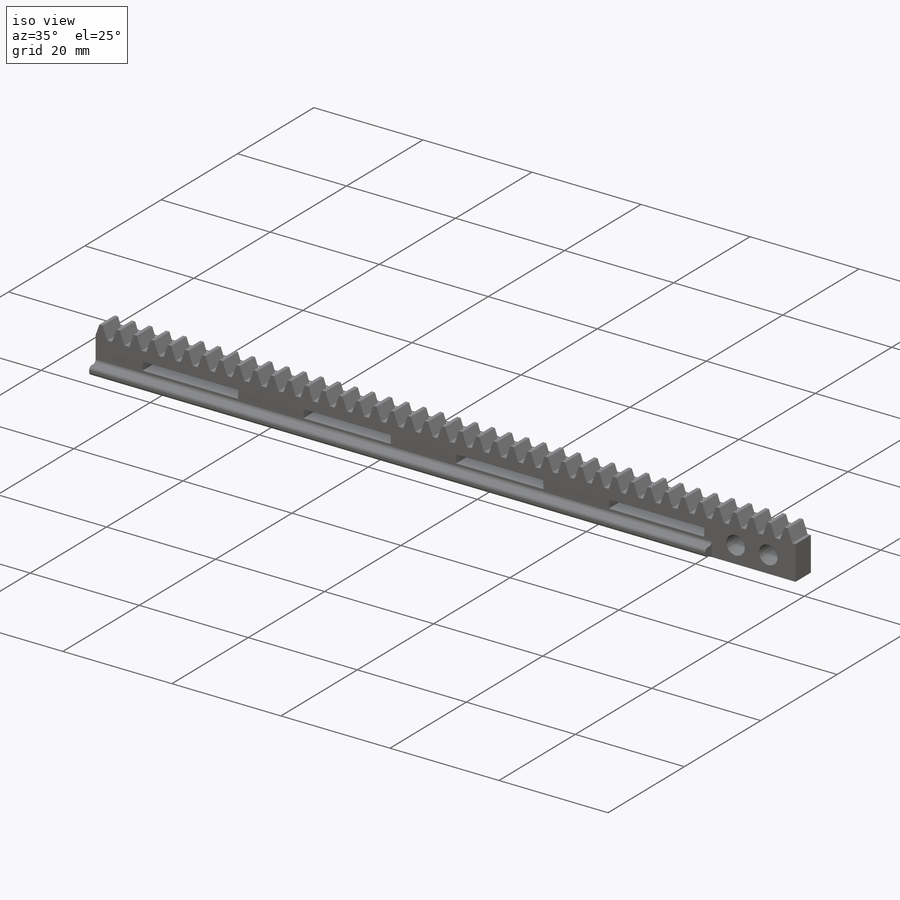
[diagram: iso view]
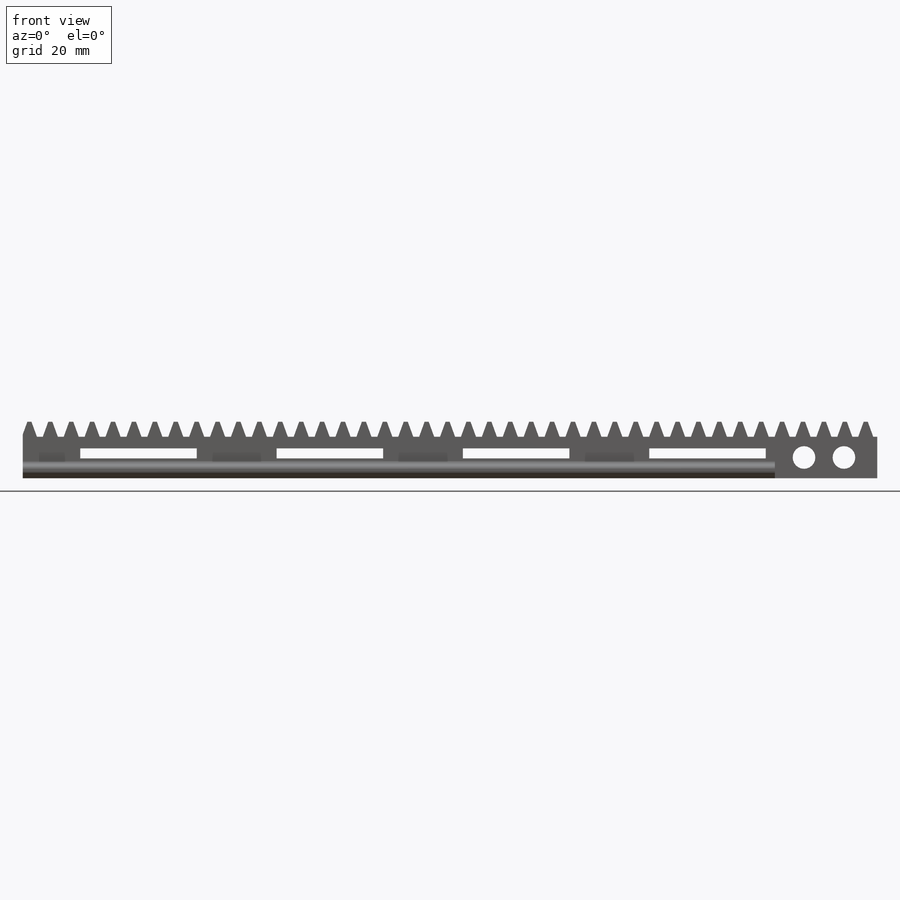
[diagram: front view]
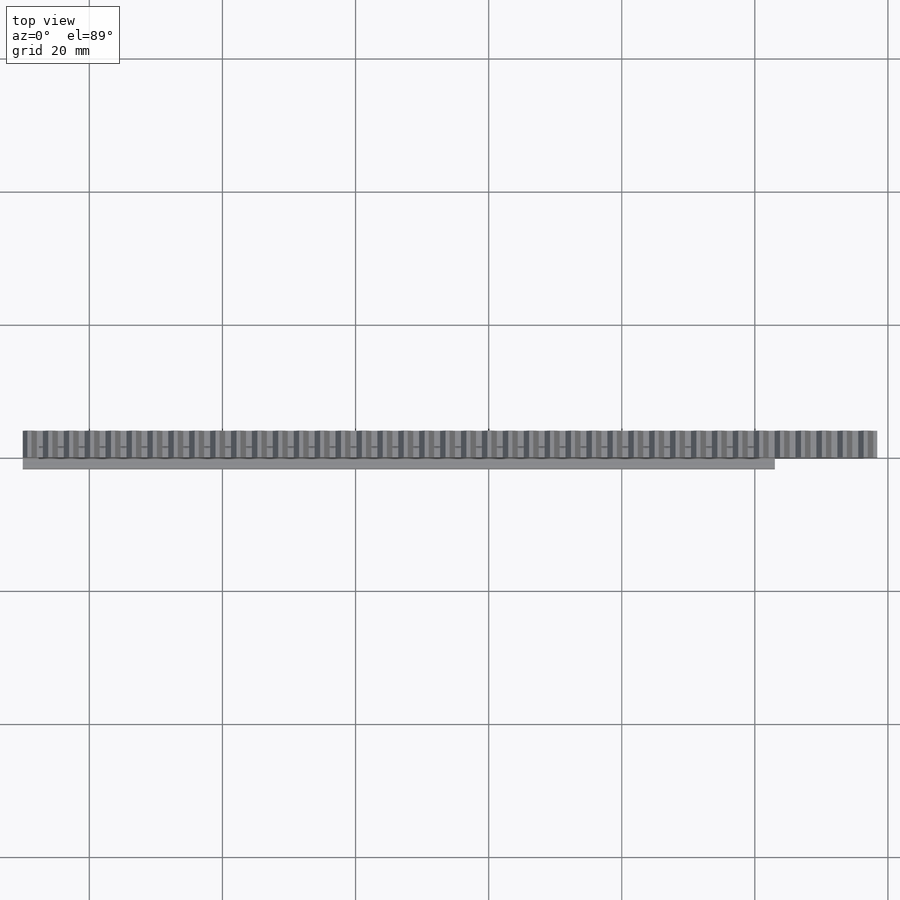
[diagram: top view]
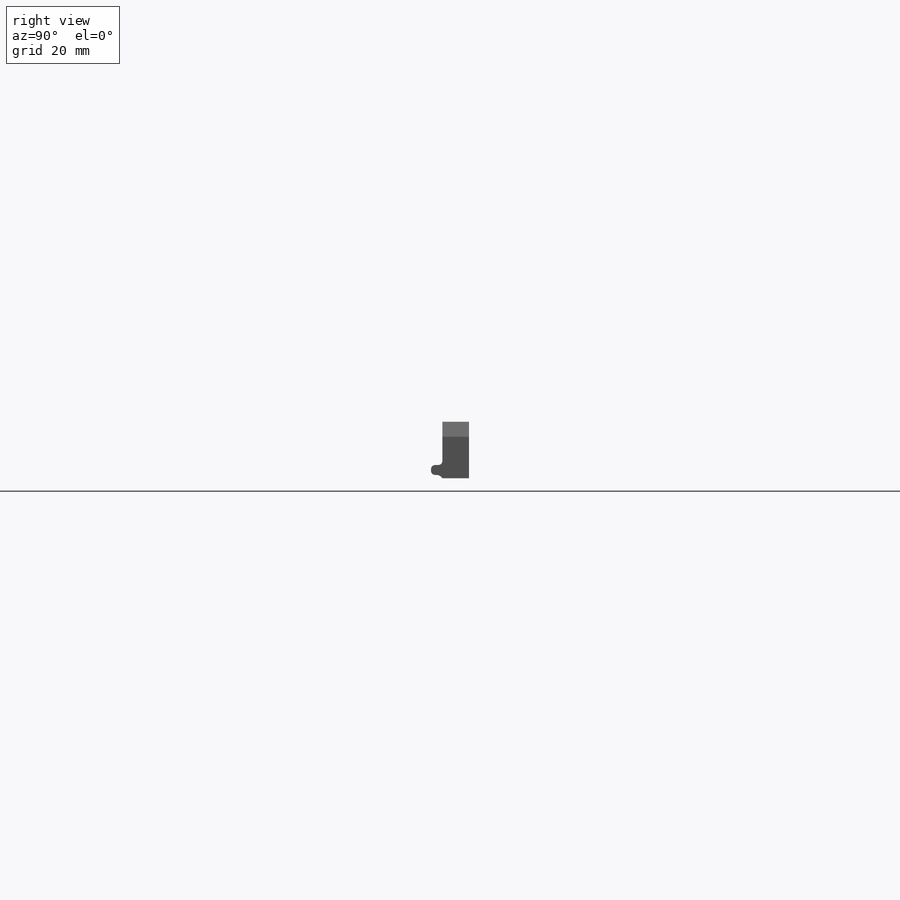
[diagram: right view]
SOLIDWORKS PART (.sldprt)
format: sldprt  version: not decoded by parser v0  size: 947,200 bytes
history: native  units: mm
features: sketch x11, cut_extrude x6, extrude x4, fillet x4, plane x3, pattern_linear x3, material x1 (+10 scaffold rows collapsed)
feature tree (42):
  scaffold x10  (default folders/planes/origin — collapsed)
  material  "Material <nicht angegeben>"
  plane  "Plane1"
  plane  "Plane2"
  plane  "Plane3"
  sketch  "HoldingSke"  dims[c1.Dr=15.875mm c1.MPH=6.5mm c1.Hub_dia=25.4mm c1.Diameter=38.1mm c1.Num_teeth=7.0mm c1.D1=115.0mm c2.Num_teeth=60.9999deg c2.Pitch_radius=~46.415395mm c2.Pitch=1.0mm c2.Width=8.636mm c2.Chamfer_wid=3.175mm c2.Chamfer_dep=12.7mm c2.Overall_len=25.4mm c2.D1=115.0mm c2.Show_teeth=998.0deg c2.Thickness=12.7mm c2.OAL=~25.400051mm c2.T_dim=21.59mm c3.D1=115.0mm c3.Ap=20.0deg c3.H=19.05mm c3.Pitch_height=6.5mm c3.Width=4.0mm c3.F=44.45mm c3.Backlash=0.038mm c3.Addendum_factor=~25.318689mm c3.Dedendum_factor=~11.91639mm c3.Fillet_factor=5.08mm c4.D1=~180.312849mm c4.Addendum_fac=1.0deg c5.D1=~180.312849mm c5.Dedendum_fac=1.25deg c6.D1=~180.312849mm c6.Clearance_fac=0.25deg c6.Dedendum_add=0.001mm c6.Length=185.5mm c6.Module=1.0mm]
  sketch  "BlankSke"  dims[Length=185.5mm Blank_height=7.5mm]
  extrude  "Blank"  Depth=4mm Face_width=4mm
  sketch  "TooCutSkeIll"  dims[c1.Root_fillet=0.251mm c1.Break_rad=0.04mm c1.D1=~12.298689mm c2.D1=~35.725861deg c2.Pitch_height=6.5mm c2.Gap_width=~1.798796mm c2.Dedendum=1.25mm c2.Addendum_plus=6.35mm c3.D1=64.897mm c3.Pressure_angle=20.0deg c4.D1=~0.717728mm c4.Addendum_plus=6.35mm c5.Addendum_plus=1.0254mm]
  cut_extrude  "ToothCutIll"  [1 undecoded]
  sketch  "TooCutSkeSim"  dims[c1.Pitch_height=6.5mm c1.D1=~14.860116mm c1.Pressure_angle=20.0deg c1.Gap_width=~1.798796mm c1.Dedendum=1.25mm c1.Addendum_plus=1.0254mm c2.D1=~15.20444mm]
  cut_extrude  "ToothCutSim"  [1 undecoded]
  pattern_linear  "TeethCuts"  Count1=61 Count2=1 Spacing1=3.141593mm Spacing2=50mm Num_teeth=61 Linear_pitch=3.141593mm
  sketch  "base-line"  dims[c1.D1=~1.734041mm c1.D2=~185.437554mm c2.D1=1.0mm]
  extrude  "base"  Depth=4mm
  sketch  "notch-"  dims[c1.D1=~1.863515mm c1.D2=~150.789462mm c2.D1=1.5mm c2.D2=103.0mm c2.D3=3.0mm]
  cut_extrude  "notch"  [1 undecoded]
  sketch  "final cut"  dims[c1.D1=~10.750819mm c1.D2=~20.935806mm c2.D1=~22.067471mm c2.D2=~52.62243mm]
  cut_extrude  "final-cut"  Depth=10mm
  sketch  "rail-"  dims[c1.D1=~1.091639mm c1.D2=~120.71184mm c2.D1=0.5mm c2.D2=1.5mm c2.D3=113.0mm c2.D4=10.0mm]
  extrude  "rail"  Depth=1.7mm
  fillet  "Verrundung2"  Radius=1mm
  fillet  "Verrundung3"  Radius=0.6mm
  fillet  "Verrundung4"  Radius=0.6mm
  fillet  "Verrundung5"  Radius=0.6mm
  sketch  "fillet"  dims[c1.D1=1.5mm c1.D2=~20.551803mm c2.D1=12.0mm]
  extrude  "filleto"  [1 undecoded]
  pattern_linear  "Lineares Muster1"  Count1=2 Count2=1 Spacing1=28mm Spacing2=50mm
  pattern_linear  "Lineares Muster2"  Count1=2 Count2=1 Spacing1=28mm Spacing2=50mm
  sketch  "Skizze2"  dims[D1=~14.439985mm D2=~16.998913mm]
  cut_extrude  "Schnitt-Linear austragen1"  [1 undecoded]
  sketch  "Skizze3"  dims[c1.D1=3.4mm c1.D3=~3.492408mm c2.D1=~20.642472mm c2.D2=11.0mm c2.D3=5.0mm c2.D4=7.0mm]
  cut_extrude  "Schnitt-Linear austragen2"  [1 undecoded]
decode coverage: 22 of 28 modeling features carry decoded parameters
note: ~ marks probable driven/reference dimensions
note: 6 parameter values undecoded
summary: no parameter record found for 6 features
note: suppression state not decoded; provenance and decode notes live in map.json
